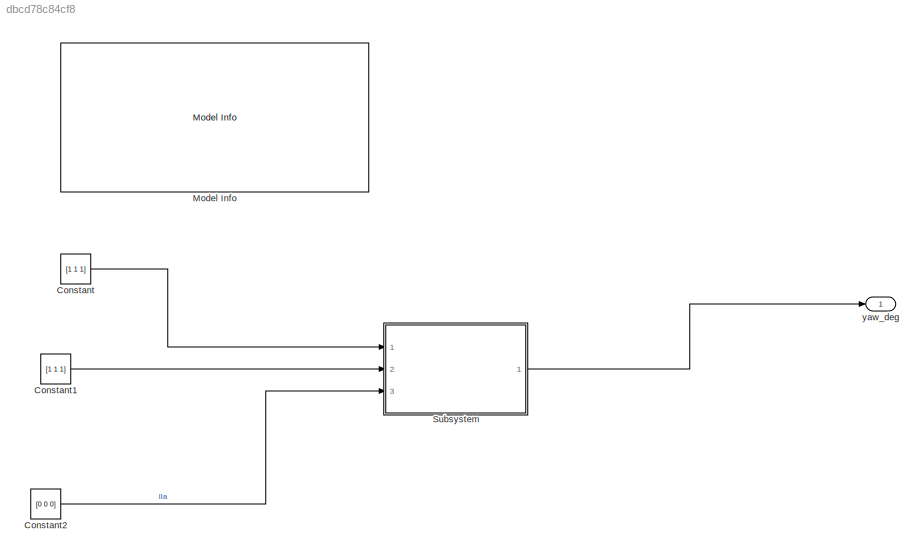
MODEL slx_dbcd78c84cf8
KIND model
CONFIG AbsTol = auto
CONFIG EnableMultiTasking = off
CONFIG FixedStep = auto
CONFIG MaxStep = auto
CONFIG MinStep = auto
CONFIG RelTol = 1e-3
CONFIG SampleTimeConstraint = Unconstrained
CONFIG Solver = FixedStepDiscrete
CONFIG SolverName = FixedStepDiscrete
CONFIG StartTime = 0.0
CONFIG StopTime = 10
BLOCK [Constant] Constant
  Value = [1 1 1]
BLOCK [Constant] Constant1
  Value = [1 1 1]
BLOCK [Constant] Constant2
  Value = [0 0 0]
BLOCK [Reference] Model Info  REF=simulink/Model-Wide
Utilities/Model Info
  Ports = []
  SourceBlock = simulink/Model-Wide\nUtilities/Model Info
  SourceProductBaseCode = SL
  SourceProductName = Simulink
  SourceType = CMBlock
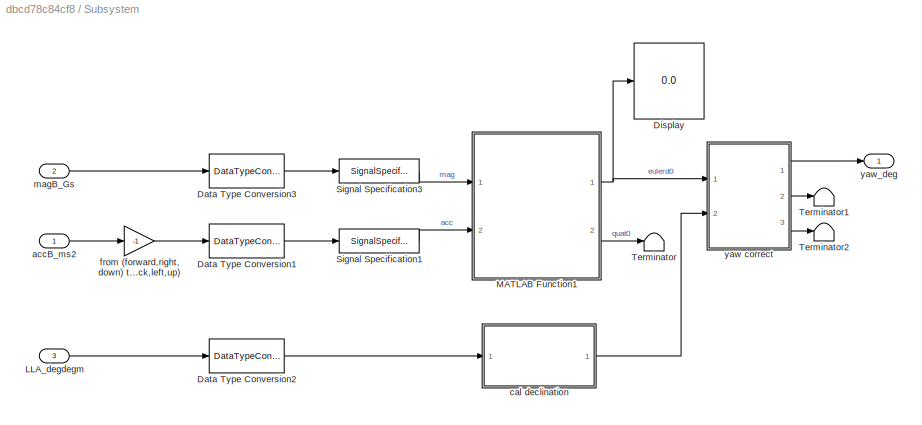
BLOCK [SubSystem] Subsystem
  Ports = [3, 1]
  RequestExecContextInheritance = off
BLOCK [DataTypeConversion] Subsystem/Data Type Conversion1
  OutDataTypeStr = double
  RndMeth = Floor
  SaturateOnIntegerOverflow = off
BLOCK [DataTypeConversion] Subsystem/Data Type Conversion2
  OutDataTypeStr = double
  RndMeth = Floor
  SaturateOnIntegerOverflow = off
BLOCK [DataTypeConversion] Subsystem/Data Type Conversion3
  OutDataTypeStr = double
  RndMeth = Floor
  SaturateOnIntegerOverflow = off
BLOCK [Display] Subsystem/Display
  Decimation = 1
  Ports = [1]
BLOCK [Inport] Subsystem/LLA_degdegm
  IconDisplay = Port number
  Port = 3
  PortDimensions = [1,3]
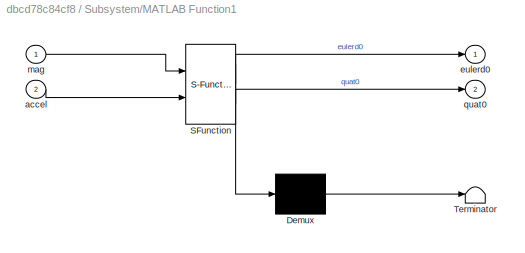
BLOCK [SubSystem] Subsystem/MATLAB Function1
  ErrorFcn = Stateflow.Translate.translate
  PermitHierarchicalResolution = ExplicitOnly
  Ports = [2, 2]
  RequestExecContextInheritance = off
  SFBlockType = MATLAB Function
  TreatAsAtomicUnit = on
BLOCK [Demux] Subsystem/MATLAB Function1/ Demux 
  Outputs = 1
  Ports = [1, 1]
BLOCK [S-Function] Subsystem/MATLAB Function1/ SFunction 
  EnableBusSupport = on
  FunctionName = sf_sfun
  PortCounts = [2 3]
  Ports = [2, 3]
  SFcnIsStateOwnerBlock = off
  SFunctionDeploymentMode = off
  Tag = Stateflow S-Function 4
BLOCK [Terminator] Subsystem/MATLAB Function1/ Terminator 
BLOCK [Inport] Subsystem/MATLAB Function1/accel
  IconDisplay = Port number
  Port = 2
BLOCK [Outport] Subsystem/MATLAB Function1/eulerd0
  IconDisplay = Port number
BLOCK [Inport] Subsystem/MATLAB Function1/mag
  IconDisplay = Port number
BLOCK [Outport] Subsystem/MATLAB Function1/quat0
  IconDisplay = Port number
  Port = 2
BLOCK [SignalSpecification] Subsystem/Signal Specification1
  Dimensions = [1,3]
BLOCK [SignalSpecification] Subsystem/Signal Specification3
  Dimensions = [1,3]
BLOCK [Terminator] Subsystem/Terminator
BLOCK [Terminator] Subsystem/Terminator1
BLOCK [Terminator] Subsystem/Terminator2
BLOCK [Inport] Subsystem/accB_ms2
  IconDisplay = Port number
  PortDimensions = [1,3]
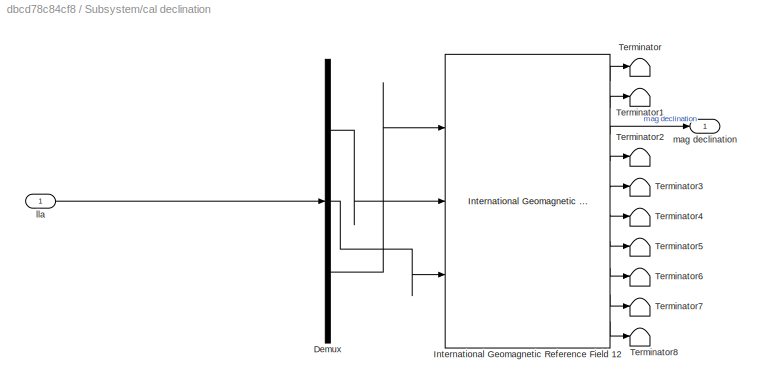
BLOCK [SubSystem] Subsystem/cal declination
  Ports = [1, 1]
  RequestExecContextInheritance = off
BLOCK [Demux] Subsystem/cal declination/Demux
  DisplayOption = bar
  Outputs = 3
  Ports = [1, 3]
BLOCK [Reference] Subsystem/cal declination/International Geomagnetic Reference Field 12  REF=aerolibgravity2/International Geomagnetic Reference Field 12
  Ports = [3, 10]
  SourceBlock = aerolibgravity2/International Geomagnetic Reference Field 12
  SourceProductBaseCode = AE
  SourceProductName = Aerospace Blockset
  SourceType = InternationalGeomagneticReferenceField12
BLOCK [Terminator] Subsystem/cal declination/Terminator
BLOCK [Terminator] Subsystem/cal declination/Terminator1
BLOCK [Terminator] Subsystem/cal declination/Terminator2
BLOCK [Terminator] Subsystem/cal declination/Terminator3
BLOCK [Terminator] Subsystem/cal declination/Terminator4
BLOCK [Terminator] Subsystem/cal declination/Terminator5
BLOCK [Terminator] Subsystem/cal declination/Terminator6
BLOCK [Terminator] Subsystem/cal declination/Terminator7
BLOCK [Terminator] Subsystem/cal declination/Terminator8
BLOCK [Inport] Subsystem/cal declination/lla
  IconDisplay = Port number
BLOCK [Outport] Subsystem/cal declination/mag declination
  IconDisplay = Port number
BLOCK [Gain] Subsystem/from (forward,right,down) to (back,left,up)
  Gain = -1
  OutDataTypeStr = Inherit: Inherit via internal rule
  ParamDataTypeStr = Inherit: Inherit via internal rule
  SaturateOnIntegerOverflow = off
BLOCK [Inport] Subsystem/magB_Gs
  IconDisplay = Port number
  Port = 2
  PortDimensions = [1,3]
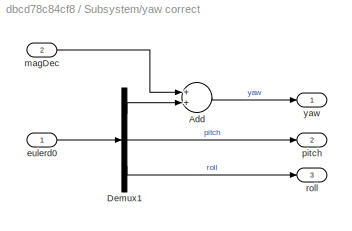
BLOCK [SubSystem] Subsystem/yaw correct
  Ports = [2, 3]
  RequestExecContextInheritance = off
BLOCK [Sum] Subsystem/yaw correct/Add
  InputSameDT = off
  OutDataTypeStr = Inherit: Inherit via internal rule
  Ports = [2, 1]
  SaturateOnIntegerOverflow = off
BLOCK [Demux] Subsystem/yaw correct/Demux1
  DisplayOption = bar
  Outputs = 3
  Ports = [1, 3]
BLOCK [Inport] Subsystem/yaw correct/eulerd0
  IconDisplay = Port number
BLOCK [Inport] Subsystem/yaw correct/magDec
  IconDisplay = Port number
  Port = 2
BLOCK [Outport] Subsystem/yaw correct/pitch
  IconDisplay = Port number
  Port = 2
BLOCK [Outport] Subsystem/yaw correct/roll
  IconDisplay = Port number
  Port = 3
BLOCK [Outport] Subsystem/yaw correct/yaw
  IconDisplay = Port number
BLOCK [Outport] Subsystem/yaw_deg
  IconDisplay = Port number
BLOCK [Outport] yaw_deg
  IconDisplay = Port number
LINE Constant1:1 -> Subsystem:2
LINE Constant2:1 -> Subsystem:3
LINE Constant:1 -> Subsystem:1
LINE Subsystem/Data Type Conversion1:1 -> Subsystem/Signal Specification1:1
LINE Subsystem/Data Type Conversion2:1 -> Subsystem/cal declination:1
LINE Subsystem/Data Type Conversion3:1 -> Subsystem/Signal Specification3:1
LINE Subsystem/LLA_degdegm:1 -> Subsystem/Data Type Conversion2:1
NET Subsystem/MATLAB Function1:1 -> Subsystem/Display:1, Subsystem/yaw correct:1
LINE Subsystem/MATLAB Function1:2 -> Subsystem/Terminator:1
LINE Subsystem/Signal Specification1:1 -> Subsystem/MATLAB Function1:2
LINE Subsystem/Signal Specification3:1 -> Subsystem/MATLAB Function1:1
LINE Subsystem/accB_ms2:1 -> Subsystem/from (forward,right,down) to (back,left,up):1
LINE Subsystem/cal declination/Demux:1 -> Subsystem/cal declination/International Geomagnetic Reference Field 12:2
LINE Subsystem/cal declination/Demux:2 -> Subsystem/cal declination/International Geomagnetic Reference Field 12:3
LINE Subsystem/cal declination/Demux:3 -> Subsystem/cal declination/International Geomagnetic Reference Field 12:1
LINE Subsystem/cal declination/International Geomagnetic Reference Field 12:1 -> Subsystem/cal declination/Terminator:1
LINE Subsystem/cal declination/International Geomagnetic Reference Field 12:10 -> Subsystem/cal declination/Terminator8:1
LINE Subsystem/cal declination/International Geomagnetic Reference Field 12:2 -> Subsystem/cal declination/Terminator1:1
LINE Subsystem/cal declination/International Geomagnetic Reference Field 12:3 -> Subsystem/cal declination/mag declination:1
LINE Subsystem/cal declination/International Geomagnetic Reference Field 12:4 -> Subsystem/cal declination/Terminator2:1
LINE Subsystem/cal declination/International Geomagnetic Reference Field 12:5 -> Subsystem/cal declination/Terminator3:1
LINE Subsystem/cal declination/International Geomagnetic Reference Field 12:6 -> Subsystem/cal declination/Terminator4:1
LINE Subsystem/cal declination/International Geomagnetic Reference Field 12:7 -> Subsystem/cal declination/Terminator5:1
LINE Subsystem/cal declination/International Geomagnetic Reference Field 12:8 -> Subsystem/cal declination/Terminator6:1
LINE Subsystem/cal declination/International Geomagnetic Reference Field 12:9 -> Subsystem/cal declination/Terminator7:1
LINE Subsystem/cal declination/lla:1 -> Subsystem/cal declination/Demux:1
LINE Subsystem/cal declination:1 -> Subsystem/yaw correct:2
LINE Subsystem/from (forward,right,down) to (back,left,up):1 -> Subsystem/Data Type Conversion1:1
LINE Subsystem/magB_Gs:1 -> Subsystem/Data Type Conversion3:1
LINE Subsystem/yaw correct/Add:1 -> Subsystem/yaw correct/yaw:1
LINE Subsystem/yaw correct/Demux1:1 -> Subsystem/yaw correct/Add:2
LINE Subsystem/yaw correct/Demux1:2 -> Subsystem/yaw correct/pitch:1
LINE Subsystem/yaw correct/Demux1:3 -> Subsystem/yaw correct/roll:1
LINE Subsystem/yaw correct/eulerd0:1 -> Subsystem/yaw correct/Demux1:1
LINE Subsystem/yaw correct/magDec:1 -> Subsystem/yaw correct/Add:1
LINE Subsystem/yaw correct:1 -> Subsystem/yaw_deg:1
LINE Subsystem/yaw correct:2 -> Subsystem/Terminator1:1
LINE Subsystem/yaw correct:3 -> Subsystem/Terminator2:1
LINE Subsystem:1 -> yaw_deg:1
note: NET lines group one-source signal fan-out (src -> all destinations, sorted); 1:1 wires keep LINE
CHART Subsystem/MATLAB Function1 states=1 transitions=1
  STATE_LABEL 'eML_blk_kernel()'
  STATE_LABEL "SCRIPT:\nfunction [eulerd0,quat0] = compass(mag,accel)\n    quat0 = zeros(1,4);\n    eulerd0 = zeros(1,3);\n    temp=ecompass(accel,mag);\n    quat0 = compact(temp);\n%     eulerd0 = eulerd(quat0);\n    eulerd0 = to_euler(quat0);\n    \nend\n\n\nfunction eout = eulerd(quat)\n% rotate 'ZYX'\nqa = quat(1);\nqb = quat(2);\nqc = quat(3);\nqd = quat(4);\nthe1 = 1;\nthe2 = 2;\n\ntmp = qb.*qd.*the2 - qa.*qc.*the2;\nif tmp > t...<+611ch>"
